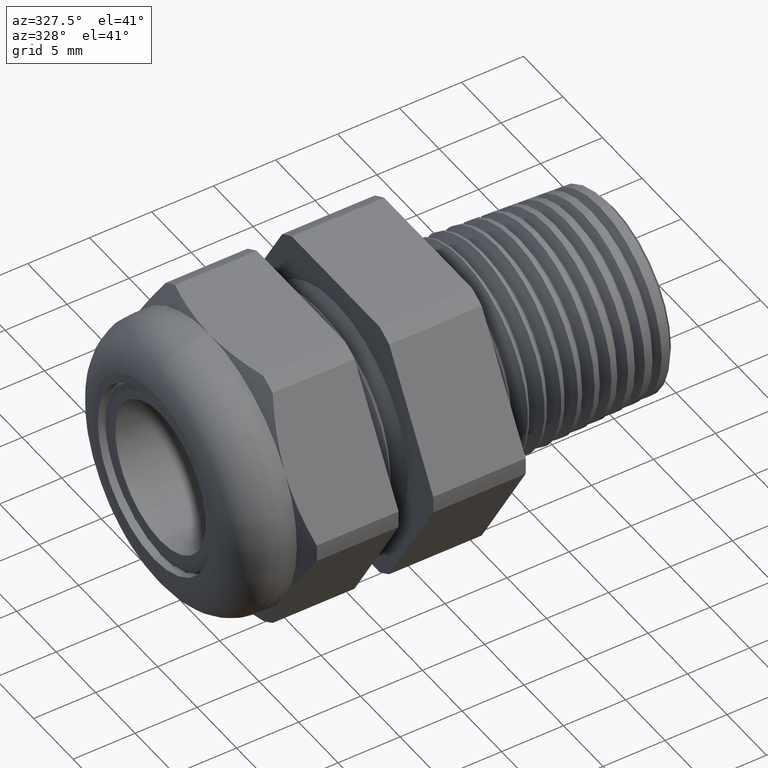
[diagram: clean part render]
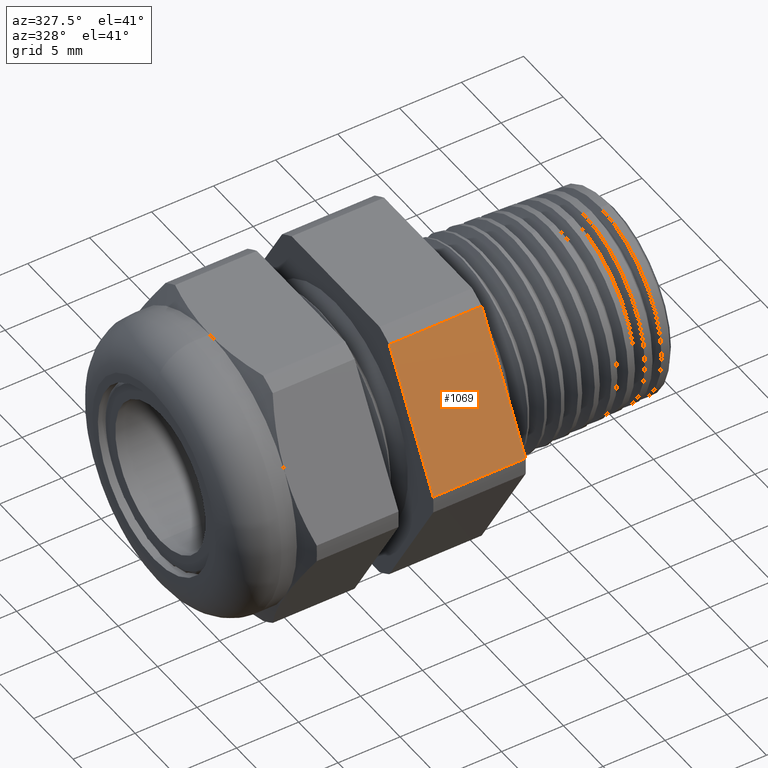
[diagram: same view with one face highlighted and labeled with its STEP entity id]
A machine part, auxiliary view. The second image highlights one B-rep face of the part: STEP entity #1069.
In plain terms, the highlighted planar face has unit normal (0, -0.866, 0.5).
Its self-contained STEP definition (entity closure, byte-faithful):
#661 = VERTEX_POINT ( 'NONE', #2372 ) ;
#663 = EDGE_CURVE ( 'NONE', #661, #664, #2371, .T. ) ;
#664 = VERTEX_POINT ( 'NONE', #2367 ) ;
#925 = EDGE_CURVE ( 'NONE', #926, #947, #2933, .T. ) ;
#926 = VERTEX_POINT ( 'NONE', #2929 ) ;
#947 = VERTEX_POINT ( 'NONE', #2953 ) ;
#992 = EDGE_CURVE ( 'NONE', #947, #664, #3004, .T. ) ;
#1065 = ORIENTED_EDGE ( 'NONE', *, *, #925, .T. ) ;
#1066 = ORIENTED_EDGE ( 'NONE', *, *, #992, .T. ) ;
#1067 = ORIENTED_EDGE ( 'NONE', *, *, #663, .F. ) ;
#1068 = ORIENTED_EDGE ( 'NONE', *, *, #1078, .F. ) ;
#1069 = ADVANCED_FACE ( 'NONE', ( #3098 ), #3097, .T. ) ;
#1070 = EDGE_LOOP ( 'NONE', ( #1065, #1066, #1067, #1068 ) ) ;
#1078 = EDGE_CURVE ( 'NONE', #926, #661, #3148, .T. ) ;
#2367 = CARTESIAN_POINT ( 'NONE',  ( 0.0000000000000000000, -0.4864238764986216800, 0.02748913188977850100 ) ) ;
#2368 = DIRECTION ( 'NONE',  ( 0.0000000000000000000, -0.5000000000000001100, -0.8660254037844386000 ) ) ;
#2369 = VECTOR ( 'NONE', #2368, 39.37007874015748900 ) ;
#2370 = CARTESIAN_POINT ( 'NONE',  ( 0.0000000000000000000, -0.2670182247938399100, 0.4075108681102214700 ) ) ;
#2371 = LINE ( 'NONE', #2370, #2369 ) ;
#2372 = CARTESIAN_POINT ( 'NONE',  ( 0.0000000000000000000, -0.2670182247938398000, 0.4075108681102215200 ) ) ;
#2929 = CARTESIAN_POINT ( 'NONE',  ( -0.2935323383084577100, -0.2670182247938398000, 0.4075108681102215200 ) ) ;
#2930 = DIRECTION ( 'NONE',  ( 0.0000000000000000000, -0.5000000000000001100, -0.8660254037844384900 ) ) ;
#2931 = VECTOR ( 'NONE', #2930, 39.37007874015748900 ) ;
#2932 = CARTESIAN_POINT ( 'NONE',  ( -0.2935323383084577100, -0.2866210506462308300, 0.3735577777619560300 ) ) ;
#2933 = LINE ( 'NONE', #2932, #2931 ) ;
#2953 = CARTESIAN_POINT ( 'NONE',  ( -0.2935323383084577100, -0.4864238764986216800, 0.02748913188977850100 ) ) ;
#3001 = DIRECTION ( 'NONE',  ( 1.000000000000000000, 0.0000000000000000000, 0.0000000000000000000 ) ) ;
#3002 = VECTOR ( 'NONE', #3001, 39.37007874015748100 ) ;
#3003 = CARTESIAN_POINT ( 'NONE',  ( -2.085539792128106900, -0.4864238764986216800, 0.02748913188977850100 ) ) ;
#3004 = LINE ( 'NONE', #3003, #3002 ) ;
#3093 = DIRECTION ( 'NONE',  ( 0.0000000000000000000, -0.5000000000000001100, -0.8660254037844384900 ) ) ;
#3094 = DIRECTION ( 'NONE',  ( 0.0000000000000000000, -0.8660254037844386000, 0.5000000000000002200 ) ) ;
#3095 = CARTESIAN_POINT ( 'NONE',  ( -2.085539792128106900, -0.2670182247938399100, 0.4075108681102214700 ) ) ;
#3096 = AXIS2_PLACEMENT_3D ( 'NONE', #3095, #3094, #3093 ) ;
#3097 = PLANE ( 'NONE',  #3096 ) ;
#3098 = FACE_OUTER_BOUND ( 'NONE', #1070, .T. ) ;
#3145 = DIRECTION ( 'NONE',  ( 1.000000000000000000, 0.0000000000000000000, 0.0000000000000000000 ) ) ;
#3146 = VECTOR ( 'NONE', #3145, 39.37007874015748100 ) ;
#3147 = CARTESIAN_POINT ( 'NONE',  ( -2.085539792128106900, -0.2670182247938398000, 0.4075108681102215200 ) ) ;
#3148 = LINE ( 'NONE', #3147, #3146 ) ;